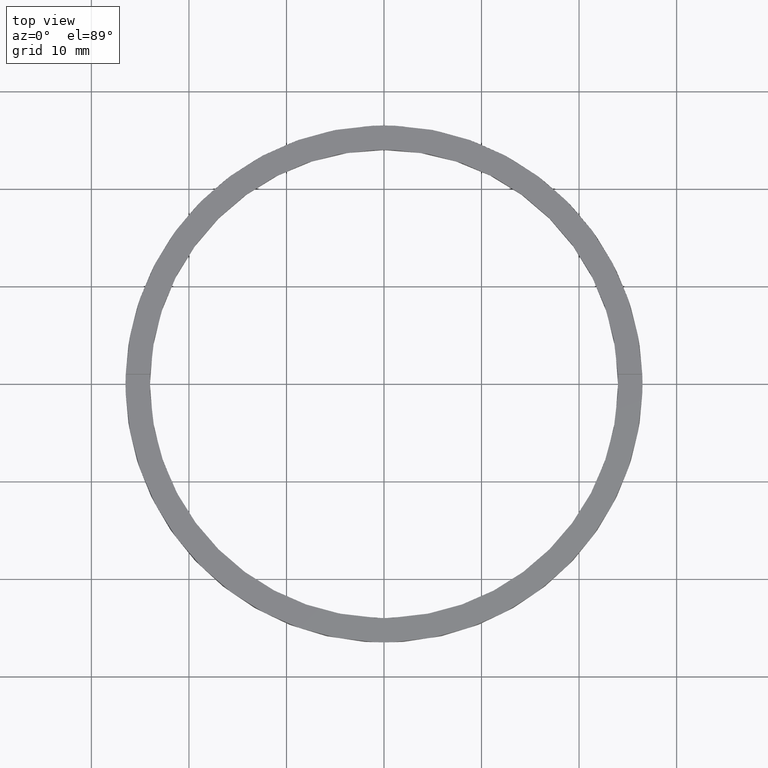
[diagram: clean part render]
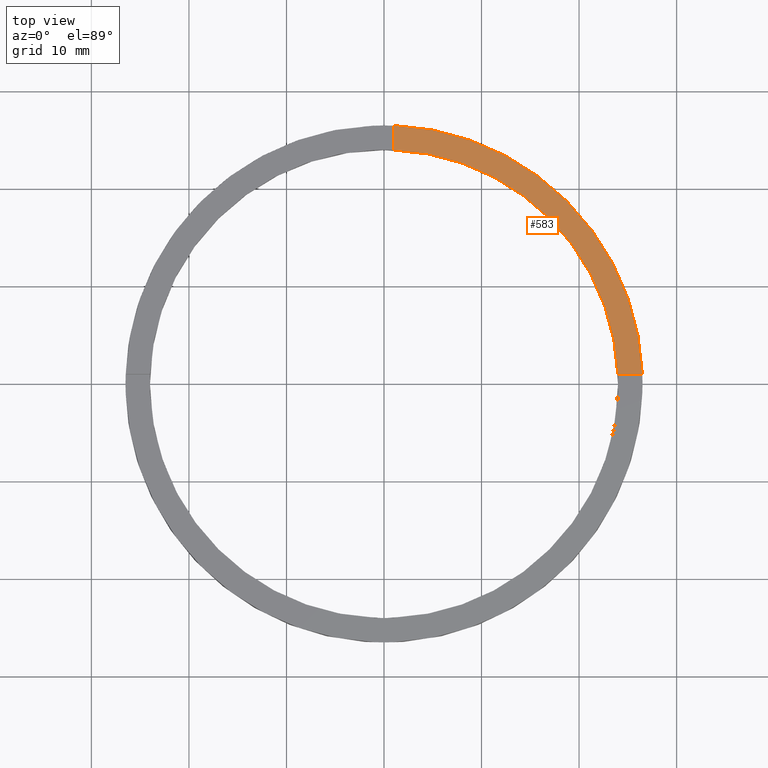
[diagram: same view with one face highlighted and labeled with its STEP entity id]
A machine part, top view. The second image highlights one B-rep face of the part: STEP entity #583.
In plain terms, the highlighted planar face has unit normal (0, 0, 1).
Its self-contained STEP definition (entity closure, byte-faithful):
#40 = CARTESIAN_POINT ( 'NONE',  ( 0.9999999999999737987, 16.50000000000000000, 2.500000000000000000 ) ) ;
#42 = AXIS2_PLACEMENT_3D ( 'NONE', #676, #742, #524 ) ;
#86 = EDGE_LOOP ( 'NONE', ( #606, #623, #572, #327 ) ) ;
#164 = CARTESIAN_POINT ( 'NONE',  ( 0.9999999999999737987, 26.48112535373072518, 2.500000000000000000 ) ) ;
#166 = CARTESIAN_POINT ( 'NONE',  ( 26.48112535373072873, 0.9999999999998427924, 2.500000000000000000 ) ) ;
#208 = FACE_OUTER_BOUND ( 'NONE', #86, .T. ) ;
#216 = DIRECTION ( 'NONE',  ( 1.000000000000000000, 0.000000000000000000, 0.000000000000000000 ) ) ;
#235 = EDGE_CURVE ( 'NONE', #369, #373, #695, .T. ) ;
#281 = AXIS2_PLACEMENT_3D ( 'NONE', #414, #474, #710 ) ;
#327 = ORIENTED_EDGE ( 'NONE', *, *, #612, .T. ) ;
#369 = VERTEX_POINT ( 'NONE', #429 ) ;
#373 = VERTEX_POINT ( 'NONE', #391 ) ;
#391 = CARTESIAN_POINT ( 'NONE',  ( 0.9999999999999737987, 23.97915761656360445, 2.500000000000000000 ) ) ;
#401 = DIRECTION ( 'NONE',  ( -1.000000000000000000, -4.336808689942017120E-17, -0.000000000000000000 ) ) ;
#414 = CARTESIAN_POINT ( 'NONE',  ( 0.000000000000000000, 0.000000000000000000, 2.500000000000000000 ) ) ;
#429 = CARTESIAN_POINT ( 'NONE',  ( 23.97915761656361155, 0.9999999999998427924, 2.500000000000000000 ) ) ;
#467 = CIRCLE ( 'NONE', #779, 26.50000000000000355 ) ;
#468 = EDGE_CURVE ( 'NONE', #656, #369, #711, .T. ) ;
#474 = DIRECTION ( 'NONE',  ( 0.000000000000000000, 0.000000000000000000, 1.000000000000000000 ) ) ;
#475 = VECTOR ( 'NONE', #608, 1000.000000000000000 ) ;
#488 = LINE ( 'NONE', #40, #475 ) ;
#505 = EDGE_CURVE ( 'NONE', #373, #553, #488, .T. ) ;
#524 = DIRECTION ( 'NONE',  ( 1.000000000000000000, 0.000000000000000000, -0.000000000000000000 ) ) ;
#553 = VERTEX_POINT ( 'NONE', #164 ) ;
#572 = ORIENTED_EDGE ( 'NONE', *, *, #468, .F. ) ;
#583 = ADVANCED_FACE ( 'NONE', ( #208 ), #634, .T. ) ;
#606 = ORIENTED_EDGE ( 'NONE', *, *, #505, .F. ) ;
#608 = DIRECTION ( 'NONE',  ( 0.000000000000000000, 1.000000000000000000, 0.000000000000000000 ) ) ;
#612 = EDGE_CURVE ( 'NONE', #656, #553, #467, .T. ) ;
#623 = ORIENTED_EDGE ( 'NONE', *, *, #235, .F. ) ;
#634 = PLANE ( 'NONE',  #42 ) ;
#656 = VERTEX_POINT ( 'NONE', #166 ) ;
#676 = CARTESIAN_POINT ( 'NONE',  ( 0.000000000000000000, 0.000000000000000000, 2.500000000000000000 ) ) ;
#685 = CARTESIAN_POINT ( 'NONE',  ( 0.000000000000000000, 0.000000000000000000, 2.500000000000000000 ) ) ;
#687 = CARTESIAN_POINT ( 'NONE',  ( 16.49999999999999289, 0.9999999999998423483, 2.500000000000000000 ) ) ;
#695 = CIRCLE ( 'NONE', #281, 24.00000000000000355 ) ;
#710 = DIRECTION ( 'NONE',  ( 1.000000000000000000, 0.000000000000000000, 0.000000000000000000 ) ) ;
#711 = LINE ( 'NONE', #687, #712 ) ;
#712 = VECTOR ( 'NONE', #401, 1000.000000000000000 ) ;
#742 = DIRECTION ( 'NONE',  ( 0.000000000000000000, 0.000000000000000000, 1.000000000000000000 ) ) ;
#756 = DIRECTION ( 'NONE',  ( 0.000000000000000000, 0.000000000000000000, 1.000000000000000000 ) ) ;
#779 = AXIS2_PLACEMENT_3D ( 'NONE', #685, #756, #216 ) ;